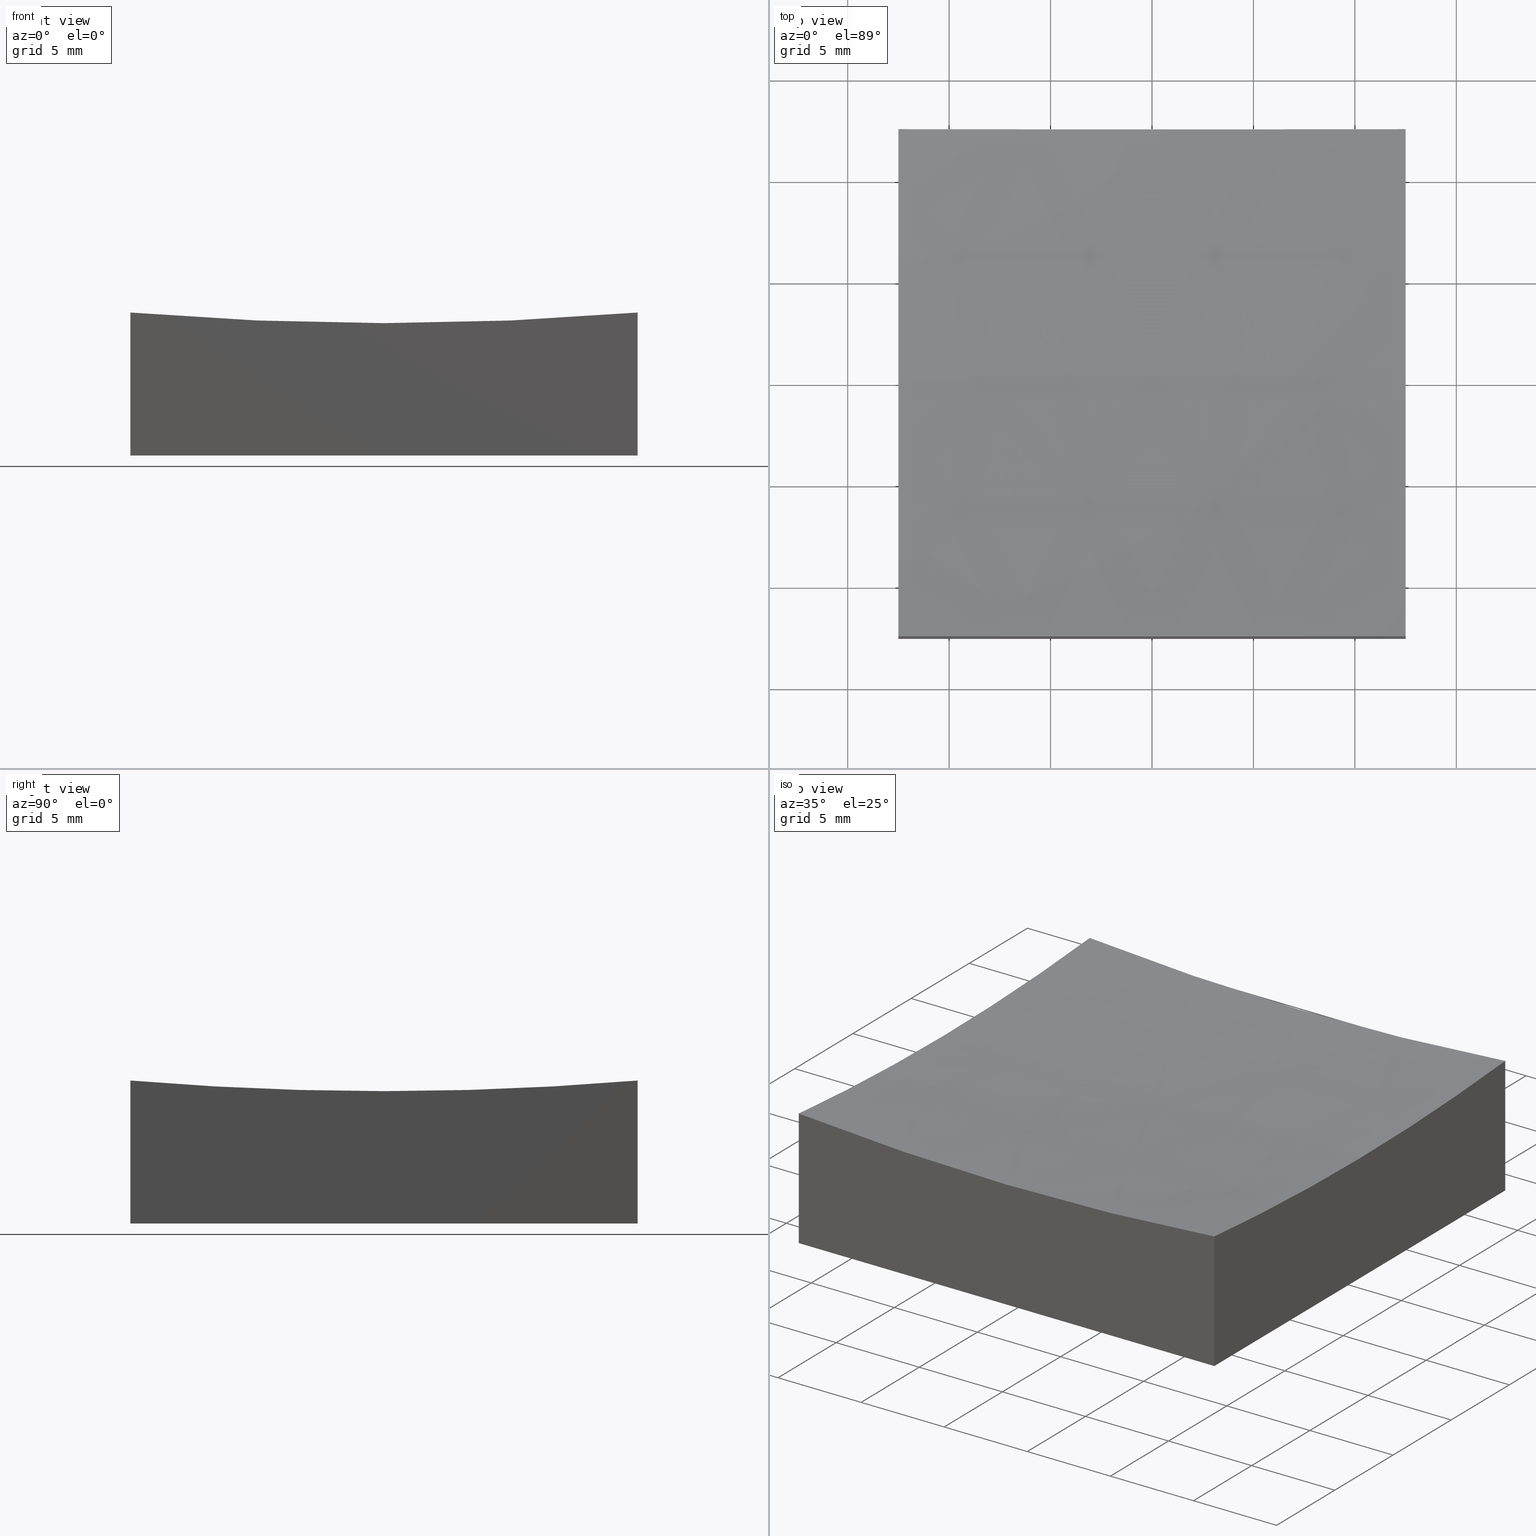
[diagram: canonical four-view strip — front | top / right | iso, engineering-drawing reading convention]
A machine part, canonical four-view strip (front | top / right | iso — engineering-drawing reading convention). The complete STEP part file that produces these views, byte-faithful:
ISO-10303-21;
HEADER;
FILE_DESCRIPTION (( 'STEP AP214' ),
    '1' );
FILE_NAME ('270037.STEP',
    '2020-06-05T06:18:58',
    ( '' ),
    ( '' ),
    'SwSTEP 2.0',
    'SolidWorks 2019',
    '' );
FILE_SCHEMA (( 'AUTOMOTIVE_DESIGN' ));
ENDSEC;

DATA;
#1 = ADVANCED_FACE ( 'NONE', ( #229 ), #5, .T. ) ;
#2 =( NAMED_UNIT ( * ) PLANE_ANGLE_UNIT ( ) SI_UNIT ( $, .RADIAN. ) );
#3 = DIRECTION ( 'NONE',  ( 1.000000000000000000, 0.0000000000000000000, 0.0000000000000000000 ) ) ;
#4 = DIRECTION ( 'NONE',  ( 1.000000000000000000, 1.387778780781445676E-16, -0.0000000000000000000 ) ) ;
#5 = PLANE ( 'NONE',  #76 ) ;
#6 = PRODUCT_DEFINITION_FORMATION_WITH_SPECIFIED_SOURCE ( '�κ�', '', #194, .NOT_KNOWN. ) ;
#7 = AXIS2_PLACEMENT_3D ( 'NONE', #207, #103, #183 ) ;
#8 = DIRECTION ( 'NONE',  ( 0.0000000000000000000, -0.0000000000000000000, 1.000000000000000000 ) ) ;
#9 = ORIENTED_EDGE ( 'NONE', *, *, #202, .F. ) ;
#10 = DIRECTION ( 'NONE',  ( -1.392622700503039633E-16, 1.000000000000000000, 0.0000000000000000000 ) ) ;
#11 = ORIENTED_EDGE ( 'NONE', *, *, #197, .T. ) ;
#12 = ORIENTED_EDGE ( 'NONE', *, *, #26, .F. ) ;
#13 = DIRECTION ( 'NONE',  ( 0.0000000000000000000, 1.000000000000000000, 0.0000000000000000000 ) ) ;
#14 = VERTEX_POINT ( 'NONE', #80 ) ;
#15 = EDGE_CURVE ( 'NONE', #50, #137, #117, .T. ) ;
#16 = UNCERTAINTY_MEASURE_WITH_UNIT (LENGTH_MEASURE( 1.000000000000000082E-05 ), #34, 'distance_accuracy_value', 'NONE');
#17 = DIRECTION ( 'NONE',  ( 1.000000000000000000, 0.0000000000000000000, 0.0000000000000000000 ) ) ;
#18 = CARTESIAN_POINT ( 'NONE',  ( -12.50000000000000000, 1.530808498934194480E-15, 6.521740711232570931 ) ) ;
#19 = AXIS2_PLACEMENT_3D ( 'NONE', #135, #177, #200 ) ;
#20 = PRODUCT_DEFINITION_SHAPE ( 'NONE', 'NONE',  #33 ) ;
#21 = VECTOR ( 'NONE', #73, 1000.000000000000000 ) ;
#22 = APPLICATION_CONTEXT ( 'automotive_design' ) ;
#23 = LINE ( 'NONE', #198, #78 ) ;
#24 = CARTESIAN_POINT ( 'NONE',  ( -12.50000000000000000, 12.50000000000000000, 0.0000000000000000000 ) ) ;
#25 = CARTESIAN_POINT ( 'NONE',  ( 12.50000000000000355, -12.50000000000000000, 7.045308902337731993 ) ) ;
#26 = EDGE_CURVE ( 'NONE', #61, #98, #68, .T. ) ;
#27 = CARTESIAN_POINT ( 'NONE',  ( 1.910449006669871151E-14, 0.0000000000000000000, 156.0000000000000000 ) ) ;
#28 = ORIENTED_EDGE ( 'NONE', *, *, #91, .F. ) ;
#29 =( LENGTH_UNIT ( ) NAMED_UNIT ( * ) SI_UNIT ( .MILLI., .METRE. ) );
#30 = ORIENTED_EDGE ( 'NONE', *, *, #202, .T. ) ;
#31 = PRESENTATION_LAYER_ASSIGNMENT (  '', '', ( #195 ) ) ;
#32 = ORIENTED_EDGE ( 'NONE', *, *, #134, .T. ) ;
#33 = PRODUCT_DEFINITION ( 'δ֪', '', #6, #167 ) ;
#34 =( LENGTH_UNIT ( ) NAMED_UNIT ( * ) SI_UNIT ( .MILLI., .METRE. ) );
#35 = UNCERTAINTY_MEASURE_WITH_UNIT (LENGTH_MEASURE( 1.000000000000000082E-05 ), #169, 'distance_accuracy_value', 'NONE');
#36 = DIRECTION ( 'NONE',  ( 0.0000000000000000000, 0.0000000000000000000, -1.000000000000000000 ) ) ;
#37 = SURFACE_STYLE_FILL_AREA ( #252 ) ;
#38 = DIRECTION ( 'NONE',  ( 0.0000000000000000000, 0.0000000000000000000, 1.000000000000000000 ) ) ;
#39 = VECTOR ( 'NONE', #122, 1000.000000000000000 ) ;
#40 = SURFACE_STYLE_USAGE ( .BOTH. , #146 ) ;
#41 = FACE_OUTER_BOUND ( 'NONE', #184, .T. ) ;
#42 = CARTESIAN_POINT ( 'NONE',  ( -12.50000000000000000, 12.50000000000000000, 20.00000000000000000 ) ) ;
#43 = CARTESIAN_POINT ( 'NONE',  ( -12.50000000000000000, 12.50000000000000000, 0.0000000000000000000 ) ) ;
#44 = CARTESIAN_POINT ( 'NONE',  ( -12.50000000000000000, 12.50000000000000000, 20.00000000000000000 ) ) ;
#45 = PRESENTATION_LAYER_ASSIGNMENT (  '', '', ( #153 ) ) ;
#46 = ORIENTED_EDGE ( 'NONE', *, *, #249, .F. ) ;
#47 = ORIENTED_EDGE ( 'NONE', *, *, #197, .F. ) ;
#48 = ORIENTED_EDGE ( 'NONE', *, *, #114, .F. ) ;
#49 = AXIS2_PLACEMENT_3D ( 'NONE', #54, #168, #87 ) ;
#50 = VERTEX_POINT ( 'NONE', #159 ) ;
#51 =( NAMED_UNIT ( * ) SI_UNIT ( $, .STERADIAN. ) SOLID_ANGLE_UNIT ( ) );
#52 = CARTESIAN_POINT ( 'NONE',  ( -12.50000000000000000, 12.50000000000000000, 0.0000000000000000000 ) ) ;
#53 = PRESENTATION_STYLE_ASSIGNMENT (( #40 ) ) ;
#54 = CARTESIAN_POINT ( 'NONE',  ( -12.49999999999999822, -1.734723475976809461E-15, 156.0000000000000000 ) ) ;
#55 = FILL_AREA_STYLE ('',( #108 ) ) ;
#56 = DIRECTION ( 'NONE',  ( -1.387778780781445676E-16, 1.000000000000000000, 0.0000000000000000000 ) ) ;
#57 = CARTESIAN_POINT ( 'NONE',  ( 0.0000000000000000000, 0.0000000000000000000, 0.0000000000000000000 ) ) ;
#58 = AXIS2_PLACEMENT_3D ( 'NONE', #211, #188, #36 ) ;
#59 = PLANE ( 'NONE',  #99 ) ;
#60 = CARTESIAN_POINT ( 'NONE',  ( 12.50000000000000000, 12.50000000000000000, 7.045308902337731993 ) ) ;
#61 = VERTEX_POINT ( 'NONE', #60 ) ;
#62 = CARTESIAN_POINT ( 'NONE',  ( -12.49999999999999822, -1.734723475976809461E-15, 156.0000000000000000 ) ) ;
#63 = VERTEX_POINT ( 'NONE', #242 ) ;
#64 = ORIENTED_EDGE ( 'NONE', *, *, #247, .F. ) ;
#65 = ORIENTED_EDGE ( 'NONE', *, *, #104, .F. ) ;
#66 = CARTESIAN_POINT ( 'NONE',  ( 12.50000000000000000, 12.50000000000000000, 20.00000000000000000 ) ) ;
#67 = VECTOR ( 'NONE', #125, 1000.000000000000000 ) ;
#68 = CIRCLE ( 'NONE', #19, 149.4782592887674184 ) ;
#69 = LINE ( 'NONE', #52, #205 ) ;
#70 = SURFACE_SIDE_STYLE ('',( #37 ) ) ;
#71 =( NAMED_UNIT ( * ) PLANE_ANGLE_UNIT ( ) SI_UNIT ( $, .RADIAN. ) );
#72 = MECHANICAL_DESIGN_GEOMETRIC_PRESENTATION_REPRESENTATION (  '', ( #195 ), #79 ) ;
#73 = DIRECTION ( 'NONE',  ( -0.0000000000000000000, -0.0000000000000000000, -1.000000000000000000 ) ) ;
#74 = DIRECTION ( 'NONE',  ( -1.000000000000000000, 0.0000000000000000000, -0.0000000000000000000 ) ) ;
#75 = EDGE_CURVE ( 'NONE', #226, #63, #131, .T. ) ;
#76 = AXIS2_PLACEMENT_3D ( 'NONE', #44, #112, #8 ) ;
#77 = CARTESIAN_POINT ( 'NONE',  ( 12.50000000000000178, -9.629649721936179265E-32, 6.521740711232570931 ) ) ;
#78 = VECTOR ( 'NONE', #3, 1000.000000000000000 ) ;
#79 =( GEOMETRIC_REPRESENTATION_CONTEXT ( 3 ) GLOBAL_UNCERTAINTY_ASSIGNED_CONTEXT ( ( #147 ) ) GLOBAL_UNIT_ASSIGNED_CONTEXT ( ( #29, #100, #180 ) ) REPRESENTATION_CONTEXT ( 'NONE', 'WORKASPACE' ) );
#80 = CARTESIAN_POINT ( 'NONE',  ( -12.49999999999999645, -12.50000000000000000, 7.045308902337731993 ) ) ;
#81 = ORIENTED_EDGE ( 'NONE', *, *, #134, .F. ) ;
#82 = VERTEX_POINT ( 'NONE', #77 ) ;
#83 = ORIENTED_EDGE ( 'NONE', *, *, #143, .T. ) ;
#84 = DIRECTION ( 'NONE',  ( 0.0000000000000000000, 0.0000000000000000000, 1.000000000000000000 ) ) ;
#85 = VERTEX_POINT ( 'NONE', #25 ) ;
#86 = PRODUCT_CONTEXT ( 'NONE', #199, 'mechanical' ) ;
#87 = DIRECTION ( 'NONE',  ( -1.392622700503039633E-16, 1.000000000000000000, 0.0000000000000000000 ) ) ;
#88 = CIRCLE ( 'NONE', #49, 149.4782592887674184 ) ;
#89 = LINE ( 'NONE', #129, #21 ) ;
#90 = CIRCLE ( 'NONE', #109, 149.4782592887674184 ) ;
#91 = EDGE_CURVE ( 'NONE', #82, #61, #154, .T. ) ;
#92 = SPHERICAL_SURFACE ( 'NONE', #158, 149.9999999999999716 ) ;
#93 = DIRECTION ( 'NONE',  ( -0.0000000000000000000, 1.000000000000000000, 0.0000000000000000000 ) ) ;
#94 = PRODUCT_RELATED_PRODUCT_CATEGORY ( 'part', '', ( #194 ) ) ;
#95 = DIRECTION ( 'NONE',  ( 1.224646799147353207E-16, 1.000000000000000000, 3.162935598259867280E-33 ) ) ;
#96 = DIRECTION ( 'NONE',  ( -1.000000000000000000, 1.224646799147353207E-16, 0.0000000000000000000 ) ) ;
#97 = ADVANCED_FACE ( 'NONE', ( #241 ), #59, .T. ) ;
#98 = VERTEX_POINT ( 'NONE', #234 ) ;
#99 = AXIS2_PLACEMENT_3D ( 'NONE', #133, #221, #190 ) ;
#100 =( NAMED_UNIT ( * ) PLANE_ANGLE_UNIT ( ) SI_UNIT ( $, .RADIAN. ) );
#101 = EDGE_LOOP ( 'NONE', ( #12, #115, #81, #46 ) ) ;
#102 = ORIENTED_EDGE ( 'NONE', *, *, #75, .T. ) ;
#103 = DIRECTION ( 'NONE',  ( -0.0000000000000000000, 1.000000000000000000, 0.0000000000000000000 ) ) ;
#104 = EDGE_CURVE ( 'NONE', #85, #82, #170, .T. ) ;
#105 = ORIENTED_EDGE ( 'NONE', *, *, #228, .F. ) ;
#106 = DIRECTION ( 'NONE',  ( 0.0000000000000000000, -0.0000000000000000000, 1.000000000000000000 ) ) ;
#107 = SURFACE_STYLE_USAGE ( .BOTH. , #70 ) ;
#108 = FILL_AREA_STYLE_COLOUR ( '', #141 ) ;
#109 = AXIS2_PLACEMENT_3D ( 'NONE', #62, #246, #10 ) ;
#110 = PLANE ( 'NONE',  #121 ) ;
#111 = CARTESIAN_POINT ( 'NONE',  ( 12.50000000000000000, 12.50000000000000000, 0.0000000000000000000 ) ) ;
#112 = DIRECTION ( 'NONE',  ( 0.0000000000000000000, 1.000000000000000000, 0.0000000000000000000 ) ) ;
#113 = DIRECTION ( 'NONE',  ( 1.000000000000000000, 1.387778780781445676E-16, -0.0000000000000000000 ) ) ;
#114 = EDGE_CURVE ( 'NONE', #50, #82, #130, .T. ) ;
#115 = ORIENTED_EDGE ( 'NONE', *, *, #157, .T. ) ;
#116 = ORIENTED_EDGE ( 'NONE', *, *, #157, .F. ) ;
#117 = CIRCLE ( 'NONE', #144, 149.9999999999999716 ) ;
#118 = ORIENTED_EDGE ( 'NONE', *, *, #26, .T. ) ;
#119 = CARTESIAN_POINT ( 'NONE',  ( 1.910449006669871151E-14, -12.50000000000000000, 156.0000000000000000 ) ) ;
#120 = EDGE_LOOP ( 'NONE', ( #32, #164, #105, #160 ) ) ;
#121 = AXIS2_PLACEMENT_3D ( 'NONE', #57, #196, #74 ) ;
#122 = DIRECTION ( 'NONE',  ( -0.0000000000000000000, -0.0000000000000000000, -1.000000000000000000 ) ) ;
#123 = DIRECTION ( 'NONE',  ( 0.0000000000000000000, 1.000000000000000000, 0.0000000000000000000 ) ) ;
#124 = CARTESIAN_POINT ( 'NONE',  ( 12.50000000000000178, 1.734723475976804728E-15, 156.0000000000000000 ) ) ;
#125 = DIRECTION ( 'NONE',  ( -0.0000000000000000000, -0.0000000000000000000, -1.000000000000000000 ) ) ;
#126 = FACE_OUTER_BOUND ( 'NONE', #120, .T. ) ;
#127 = VECTOR ( 'NONE', #237, 1000.000000000000000 ) ;
#128 = DIRECTION ( 'NONE',  ( 1.000000000000000000, 0.0000000000000000000, 0.0000000000000000000 ) ) ;
#129 = CARTESIAN_POINT ( 'NONE',  ( -12.49999999999999645, -12.50000000000000000, 20.00000000000000000 ) ) ;
#130 = CIRCLE ( 'NONE', #58, 149.9999999999999716 ) ;
#131 = LINE ( 'NONE', #43, #178 ) ;
#132 = COLOUR_RGB ( '',1.000000000000000000, 1.000000000000000000, 1.000000000000000000 ) ;
#133 = CARTESIAN_POINT ( 'NONE',  ( 12.50000000000000000, 12.50000000000000000, 20.00000000000000000 ) ) ;
#134 = EDGE_CURVE ( 'NONE', #226, #206, #69, .T. ) ;
#135 = CARTESIAN_POINT ( 'NONE',  ( 1.910449006669871151E-14, 12.50000000000000000, 156.0000000000000000 ) ) ;
#136 = EDGE_LOOP ( 'NONE', ( #65, #179, #161, #116, #28 ) ) ;
#137 = VERTEX_POINT ( 'NONE', #18 ) ;
#138 = ORIENTED_EDGE ( 'NONE', *, *, #176, .T. ) ;
#139 = SPHERICAL_SURFACE ( 'NONE', #7, 149.9999999999999716 ) ;
#140 = ORIENTED_EDGE ( 'NONE', *, *, #228, .T. ) ;
#141 = COLOUR_RGB ( '',1.000000000000000000, 1.000000000000000000, 1.000000000000000000 ) ;
#142 = ADVANCED_BREP_SHAPE_REPRESENTATION ( '270037', ( #155, #230 ), #236 ) ;
#143 = EDGE_CURVE ( 'NONE', #14, #137, #88, .T. ) ;
#144 = AXIS2_PLACEMENT_3D ( 'NONE', #27, #95, #96 ) ;
#145 = DIRECTION ( 'NONE',  ( -1.392622700503039633E-16, 1.000000000000000000, 0.0000000000000000000 ) ) ;
#146 = SURFACE_SIDE_STYLE ('',( #214 ) ) ;
#147 = UNCERTAINTY_MEASURE_WITH_UNIT (LENGTH_MEASURE( 1.000000000000000082E-05 ), #29, 'distance_accuracy_value', 'NONE');
#148 = AXIS2_PLACEMENT_3D ( 'NONE', #192, #123, #106 ) ;
#149 = PRESENTATION_STYLE_ASSIGNMENT (( #107 ) ) ;
#150 = ADVANCED_FACE ( 'NONE', ( #232 ), #250, .F. ) ;
#151 = DIRECTION ( 'NONE',  ( 1.000000000000000000, 0.0000000000000000000, 0.0000000000000000000 ) ) ;
#152 = LINE ( 'NONE', #111, #127 ) ;
#153 = STYLED_ITEM ( 'NONE', ( #53 ), #142 ) ;
#154 = CIRCLE ( 'NONE', #217, 149.4782592887674184 ) ;
#155 = MANIFOLD_SOLID_BREP ( '�г�-��ת2', #239 ) ;
#156 = CARTESIAN_POINT ( 'NONE',  ( 12.50000000000000178, 1.734723475976804728E-15, 156.0000000000000000 ) ) ;
#157 = EDGE_CURVE ( 'NONE', #61, #206, #225, .T. ) ;
#158 = AXIS2_PLACEMENT_3D ( 'NONE', #238, #93, #128 ) ;
#159 = CARTESIAN_POINT ( 'NONE',  ( 3.216344043384816387E-14, 0.0000000000000000000, 6.000000000000032863 ) ) ;
#160 = ORIENTED_EDGE ( 'NONE', *, *, #75, .F. ) ;
#161 = ORIENTED_EDGE ( 'NONE', *, *, #235, .F. ) ;
#162 = FACE_OUTER_BOUND ( 'NONE', #244, .T. ) ;
#163 = ORIENTED_EDGE ( 'NONE', *, *, #114, .T. ) ;
#164 = ORIENTED_EDGE ( 'NONE', *, *, #235, .T. ) ;
#165 = ORIENTED_EDGE ( 'NONE', *, *, #91, .T. ) ;
#166 = SHAPE_DEFINITION_REPRESENTATION ( #20, #142 ) ;
#167 = PRODUCT_DEFINITION_CONTEXT ( 'detailed design', #22, 'design' ) ;
#168 = DIRECTION ( 'NONE',  ( 1.000000000000000000, 1.387778780781445676E-16, -0.0000000000000000000 ) ) ;
#169 =( LENGTH_UNIT ( ) NAMED_UNIT ( * ) SI_UNIT ( .MILLI., .METRE. ) );
#170 = CIRCLE ( 'NONE', #251, 149.4782592887674184 ) ;
#171 = FILL_AREA_STYLE_COLOUR ( '', #132 ) ;
#172 = CARTESIAN_POINT ( 'NONE',  ( 0.0000000000000000000, 0.0000000000000000000, 0.0000000000000000000 ) ) ;
#173 = LINE ( 'NONE', #191, #39 ) ;
#174 = PLANE ( 'NONE',  #231 ) ;
#175 = CARTESIAN_POINT ( 'NONE',  ( 12.50000000000000355, -12.50000000000000000, 0.0000000000000000000 ) ) ;
#176 = EDGE_CURVE ( 'NONE', #137, #98, #90, .T. ) ;
#177 = DIRECTION ( 'NONE',  ( 0.0000000000000000000, 1.000000000000000000, 0.0000000000000000000 ) ) ;
#178 = VECTOR ( 'NONE', #220, 1000.000000000000000 ) ;
#179 = ORIENTED_EDGE ( 'NONE', *, *, #247, .T. ) ;
#180 =( NAMED_UNIT ( * ) SI_UNIT ( $, .STERADIAN. ) SOLID_ANGLE_UNIT ( ) );
#181 = ORIENTED_EDGE ( 'NONE', *, *, #176, .F. ) ;
#182 = EDGE_LOOP ( 'NONE', ( #9, #83, #138, #203, #102 ) ) ;
#183 = DIRECTION ( 'NONE',  ( 1.000000000000000000, 0.0000000000000000000, 0.0000000000000000000 ) ) ;
#184 = EDGE_LOOP ( 'NONE', ( #227, #163, #165, #118, #181 ) ) ;
#185 = ADVANCED_FACE ( 'NONE', ( #162 ), #139, .F. ) ;
#186 =( NAMED_UNIT ( * ) SI_UNIT ( $, .STERADIAN. ) SOLID_ANGLE_UNIT ( ) );
#187 = MECHANICAL_DESIGN_GEOMETRIC_PRESENTATION_REPRESENTATION (  '', ( #153 ), #223 ) ;
#188 = DIRECTION ( 'NONE',  ( 0.0000000000000000000, -1.000000000000000000, 0.0000000000000000000 ) ) ;
#189 = LINE ( 'NONE', #193, #67 ) ;
#190 = DIRECTION ( 'NONE',  ( -1.387778780781445676E-16, 1.000000000000000000, 0.0000000000000000000 ) ) ;
#191 = CARTESIAN_POINT ( 'NONE',  ( 12.50000000000000355, -12.50000000000000000, 20.00000000000000000 ) ) ;
#192 = CARTESIAN_POINT ( 'NONE',  ( -12.49999999999999645, -12.50000000000000000, 20.00000000000000000 ) ) ;
#193 = CARTESIAN_POINT ( 'NONE',  ( -12.50000000000000000, 12.50000000000000000, 20.00000000000000000 ) ) ;
#194 = PRODUCT ( '270037', '270037', '', ( #86 ) ) ;
#195 = STYLED_ITEM ( 'NONE', ( #149 ), #155 ) ;
#196 = DIRECTION ( 'NONE',  ( 0.0000000000000000000, 0.0000000000000000000, -1.000000000000000000 ) ) ;
#197 = EDGE_CURVE ( 'NONE', #85, #14, #208, .T. ) ;
#198 = CARTESIAN_POINT ( 'NONE',  ( -12.49999999999999645, -12.50000000000000000, 0.0000000000000000000 ) ) ;
#199 = APPLICATION_CONTEXT ( 'automotive_design' ) ;
#200 = DIRECTION ( 'NONE',  ( 0.0000000000000000000, 0.0000000000000000000, 1.000000000000000000 ) ) ;
#201 = DIRECTION ( 'NONE',  ( -1.392622700503039633E-16, 1.000000000000000000, 0.0000000000000000000 ) ) ;
#202 = EDGE_CURVE ( 'NONE', #14, #63, #89, .T. ) ;
#203 = ORIENTED_EDGE ( 'NONE', *, *, #249, .T. ) ;
#204 = DIRECTION ( 'NONE',  ( -0.0000000000000000000, -0.0000000000000000000, -1.000000000000000000 ) ) ;
#205 = VECTOR ( 'NONE', #17, 1000.000000000000000 ) ;
#206 = VERTEX_POINT ( 'NONE', #215 ) ;
#207 = CARTESIAN_POINT ( 'NONE',  ( 1.910449006669871151E-14, 0.0000000000000000000, 156.0000000000000000 ) ) ;
#208 = CIRCLE ( 'NONE', #240, 149.4782592887674184 ) ;
#209 = EDGE_LOOP ( 'NONE', ( #64, #11, #30, #140 ) ) ;
#210 = ADVANCED_FACE ( 'NONE', ( #126 ), #110, .T. ) ;
#211 = CARTESIAN_POINT ( 'NONE',  ( 1.910449006669871151E-14, 0.0000000000000000000, 156.0000000000000000 ) ) ;
#212 = APPLICATION_PROTOCOL_DEFINITION ( 'draft international standard', 'automotive_design', 1998, #22 ) ;
#213 = DIRECTION ( 'NONE',  ( 1.000000000000000000, 1.387778780781445676E-16, -0.0000000000000000000 ) ) ;
#214 = SURFACE_STYLE_FILL_AREA ( #55 ) ;
#215 = CARTESIAN_POINT ( 'NONE',  ( 12.50000000000000000, 12.50000000000000000, 0.0000000000000000000 ) ) ;
#216 = FACE_OUTER_BOUND ( 'NONE', #182, .T. ) ;
#217 = AXIS2_PLACEMENT_3D ( 'NONE', #156, #113, #201 ) ;
#218 = ADVANCED_FACE ( 'NONE', ( #41 ), #92, .F. ) ;
#219 = VECTOR ( 'NONE', #204, 1000.000000000000000 ) ;
#220 = DIRECTION ( 'NONE',  ( 1.387778780781445676E-16, -1.000000000000000000, 0.0000000000000000000 ) ) ;
#221 = DIRECTION ( 'NONE',  ( 1.000000000000000000, 1.387778780781445676E-16, -0.0000000000000000000 ) ) ;
#222 = ADVANCED_FACE ( 'NONE', ( #216 ), #174, .F. ) ;
#223 =( GEOMETRIC_REPRESENTATION_CONTEXT ( 3 ) GLOBAL_UNCERTAINTY_ASSIGNED_CONTEXT ( ( #16 ) ) GLOBAL_UNIT_ASSIGNED_CONTEXT ( ( #34, #2, #186 ) ) REPRESENTATION_CONTEXT ( 'NONE', 'WORKASPACE' ) );
#224 = ORIENTED_EDGE ( 'NONE', *, *, #15, .T. ) ;
#225 = LINE ( 'NONE', #66, #219 ) ;
#226 = VERTEX_POINT ( 'NONE', #24 ) ;
#227 = ORIENTED_EDGE ( 'NONE', *, *, #15, .F. ) ;
#228 = EDGE_CURVE ( 'NONE', #63, #245, #23, .T. ) ;
#229 = FACE_OUTER_BOUND ( 'NONE', #101, .T. ) ;
#230 = AXIS2_PLACEMENT_3D ( 'NONE', #172, #38, #151 ) ;
#231 = AXIS2_PLACEMENT_3D ( 'NONE', #42, #4, #56 ) ;
#232 = FACE_OUTER_BOUND ( 'NONE', #209, .T. ) ;
#233 = APPLICATION_PROTOCOL_DEFINITION ( 'draft international standard', 'automotive_design', 1998, #199 ) ;
#234 = CARTESIAN_POINT ( 'NONE',  ( -12.50000000000000000, 12.50000000000000000, 7.045308902337731993 ) ) ;
#235 = EDGE_CURVE ( 'NONE', #206, #245, #152, .T. ) ;
#236 =( GEOMETRIC_REPRESENTATION_CONTEXT ( 3 ) GLOBAL_UNCERTAINTY_ASSIGNED_CONTEXT ( ( #35 ) ) GLOBAL_UNIT_ASSIGNED_CONTEXT ( ( #169, #71, #51 ) ) REPRESENTATION_CONTEXT ( 'NONE', 'WORKASPACE' ) );
#237 = DIRECTION ( 'NONE',  ( 1.387778780781445676E-16, -1.000000000000000000, 0.0000000000000000000 ) ) ;
#238 = CARTESIAN_POINT ( 'NONE',  ( 1.910449006669871151E-14, 0.0000000000000000000, 156.0000000000000000 ) ) ;
#239 = CLOSED_SHELL ( 'NONE', ( #185, #1, #222, #150, #97, #210, #218 ) ) ;
#240 = AXIS2_PLACEMENT_3D ( 'NONE', #119, #13, #84 ) ;
#241 = FACE_OUTER_BOUND ( 'NONE', #136, .T. ) ;
#242 = CARTESIAN_POINT ( 'NONE',  ( -12.49999999999999645, -12.50000000000000000, 0.0000000000000000000 ) ) ;
#243 = ORIENTED_EDGE ( 'NONE', *, *, #104, .T. ) ;
#244 = EDGE_LOOP ( 'NONE', ( #48, #224, #248, #47, #243 ) ) ;
#245 = VERTEX_POINT ( 'NONE', #175 ) ;
#246 = DIRECTION ( 'NONE',  ( 1.000000000000000000, 1.387778780781445676E-16, -0.0000000000000000000 ) ) ;
#247 = EDGE_CURVE ( 'NONE', #85, #245, #173, .T. ) ;
#248 = ORIENTED_EDGE ( 'NONE', *, *, #143, .F. ) ;
#249 = EDGE_CURVE ( 'NONE', #98, #226, #189, .T. ) ;
#250 = PLANE ( 'NONE',  #148 ) ;
#251 = AXIS2_PLACEMENT_3D ( 'NONE', #124, #213, #145 ) ;
#252 = FILL_AREA_STYLE ('',( #171 ) ) ;
ENDSEC;
END-ISO-10303-21;
